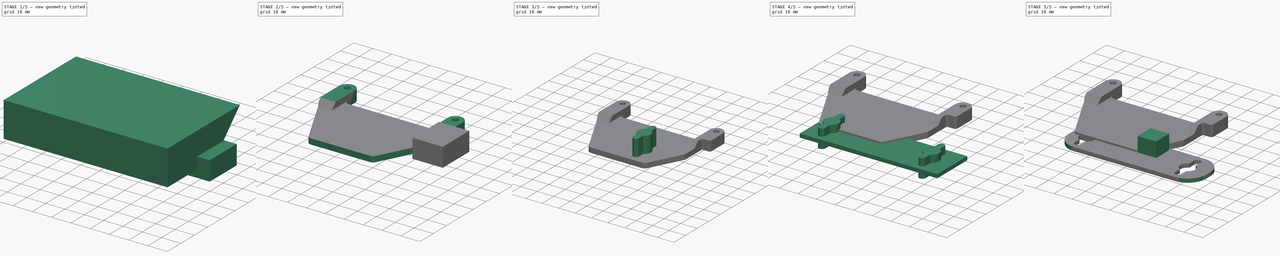
[diagram: build sequence overview — one tinted view per stage of 5, left to right]
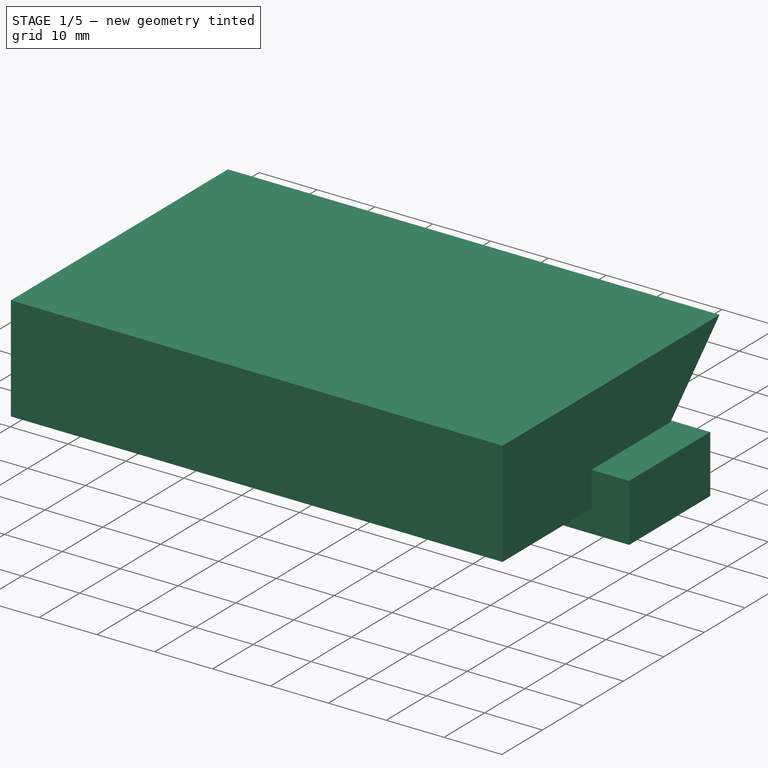
[diagram: stage 1 of 5 — iso view after this stage's code; geometry added in this stage tinted green]
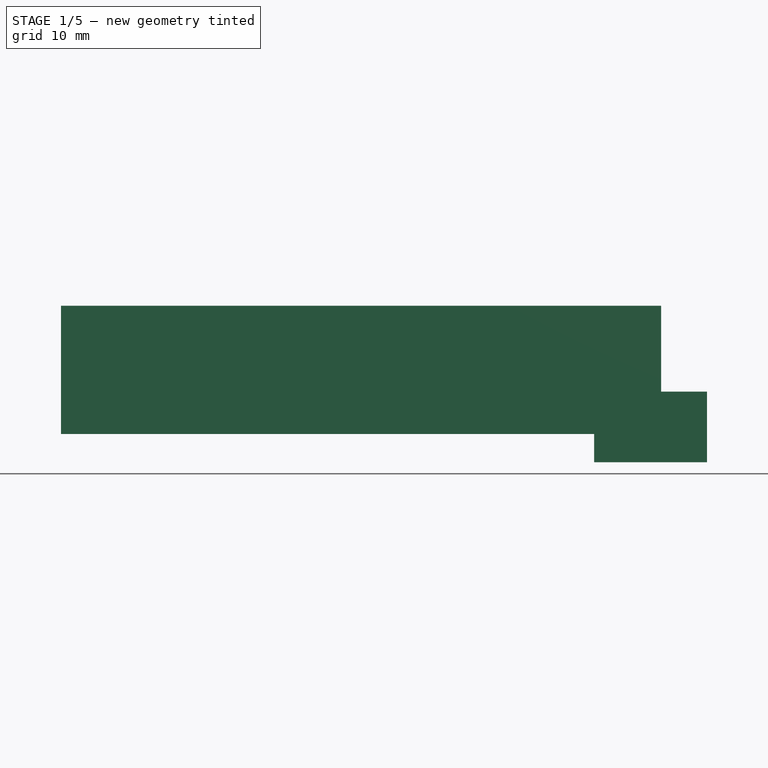
[diagram: stage 1 of 5 — front view after this stage's code; geometry added in this stage tinted green]
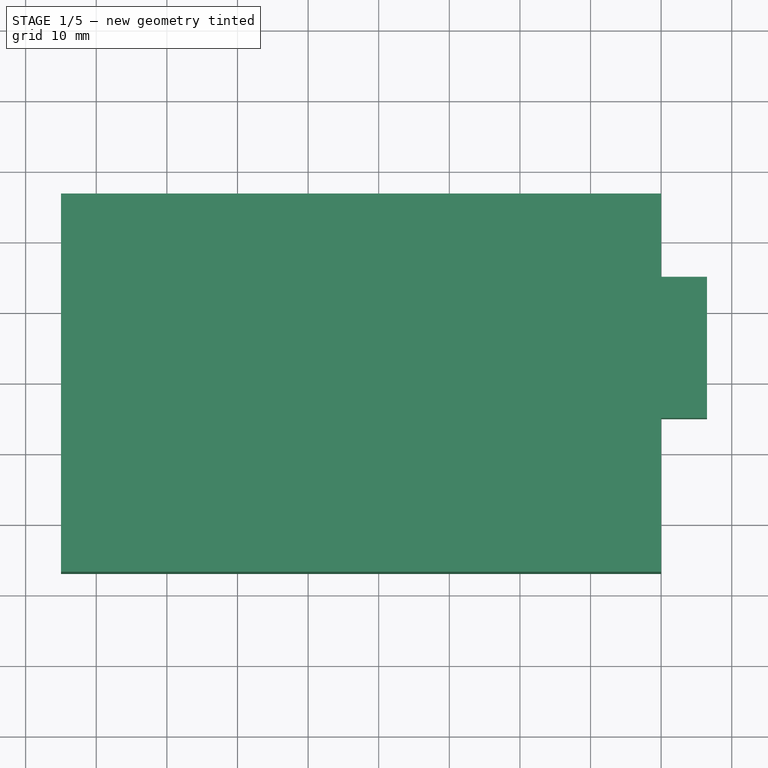
[diagram: stage 1 of 5 — top view after this stage's code; geometry added in this stage tinted green]
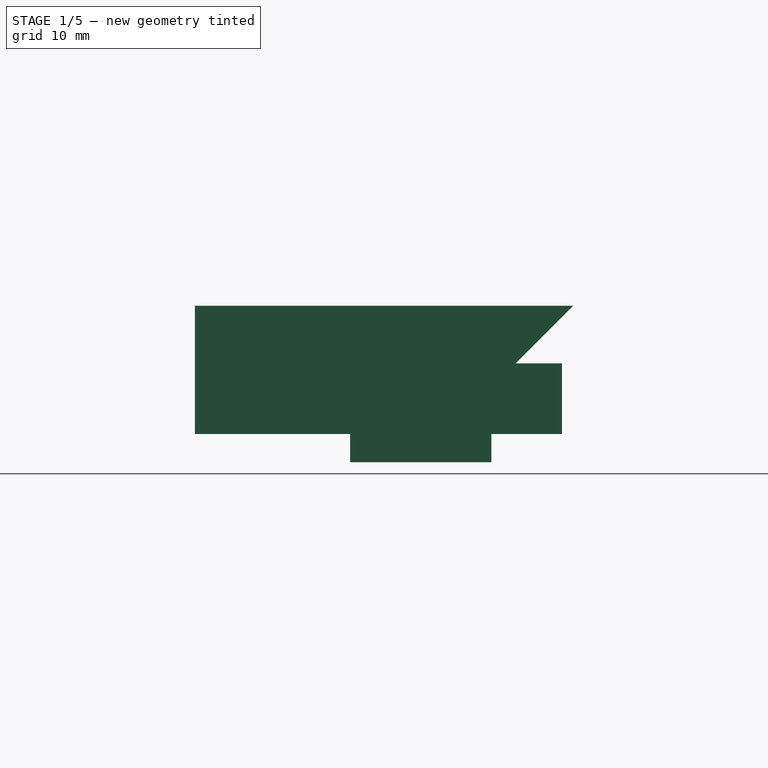
[diagram: stage 1 of 5 — right view after this stage's code; geometry added in this stage tinted green]
FCSTD DOCUMENT  (FreeCAD 0.16R)
Label: sopoeteesc
License: All rights reserved
LicenseURL: http://en.wikipedia.org/wiki/All_rights_reserved
objects: Sketcher::SketchObject×4, Part::Box×4, Part::Cut×4, PartDesign::Pad×3, Part::Fillet×3, Part::FeaturePython×2, Part::MultiFuse×1
note: 24 computed .brp shape members not serialized (recipe doc carries the construction recipe); baked Part::Feature solids carry a one-line shape summary decoded from their .brp

FEATURE [Sketcher::SketchObject] Sketch004
  Placement = pos=(20,0,0) rot=(0.57735,0.57735,0.57735;2.0944rad)
  sketch-geometry (4):
    g0: LineSegment StartX=-6.9884 StartY=21.1487 StartZ=0 EndX=46.5839 EndY=21.1487 EndZ=0
    g1: LineSegment StartX=46.5839 StartY=21.1487 StartZ=0 EndX=28.4352 EndY=3 EndZ=0
    g2: LineSegment StartX=28.4352 StartY=3 StartZ=0 EndX=-6.9884 EndY=3 EndZ=0
    g3: LineSegment StartX=-6.9884 StartY=3 StartZ=0 EndX=-6.9884 EndY=21.1487 EndZ=0
  constraints (9):
    c: Coincident(g0,g1)
    c: Coincident(g1,g2)
    c: Coincident(g2,g3)
    c: Coincident(g3,g0)
    c: Horizontal(g0)
    c: Horizontal(g2)
    c: Vertical(g3)
    c: Angle(g0,g1) = 0.785398
    c: DistanceY(g-1,g2) = 3
FEATURE [PartDesign::Pad] Pad002
  Length = 85
  Length2 = 100
  Placement = pos=(20,0,0) rot=(0.57735,0.57735,0.57735;2.0944rad)
  Reversed = true
  Sketch = -> Sketch004
  Type = 0
FEATURE [Part::Box] Box002  label="Cube002"
  Height = 10
  Length = 49
  Placement = pos=(-41.5,0,3) rot=(0,0,1;0rad)
  Width = 45
FEATURE [Part::Box] Box003  label="Cube003"
  Height = 10
  Length = 16
  Placement = pos=(10.5,15,-1) rot=(0,0,1;0rad)
  Width = 20
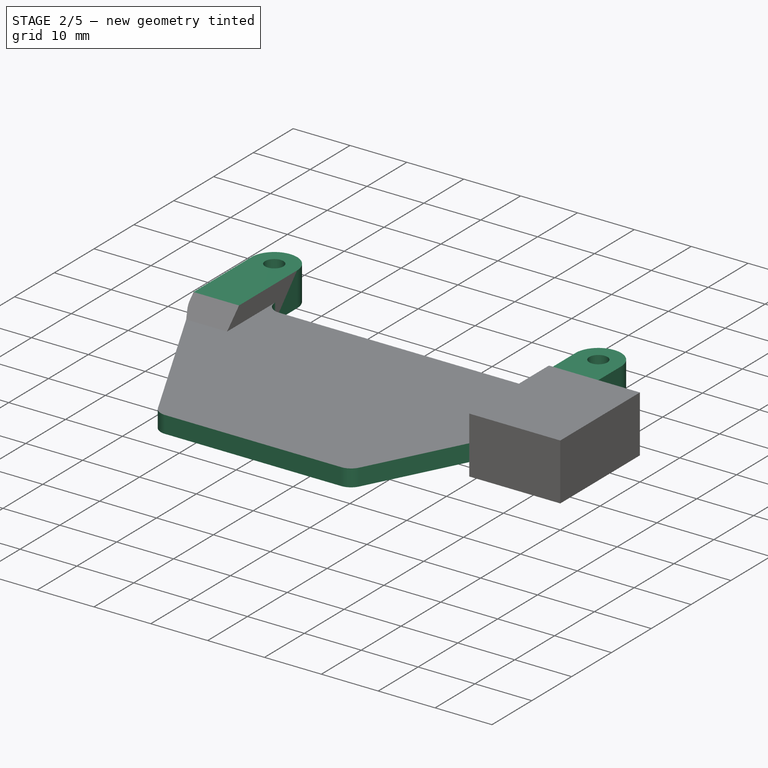
[diagram: stage 2 of 5 — iso view after this stage's code; geometry added in this stage tinted green]
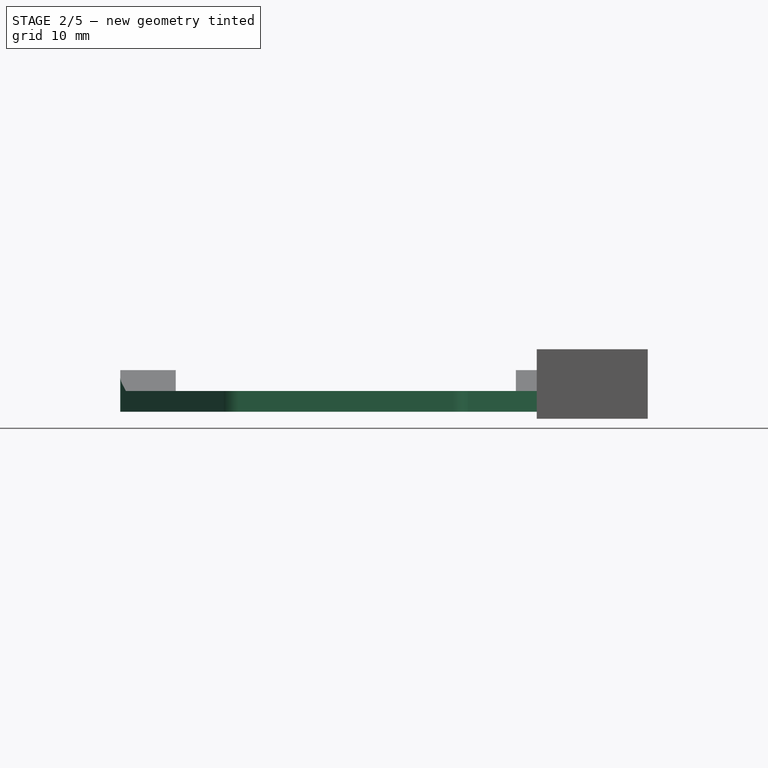
[diagram: stage 2 of 5 — front view after this stage's code; geometry added in this stage tinted green]
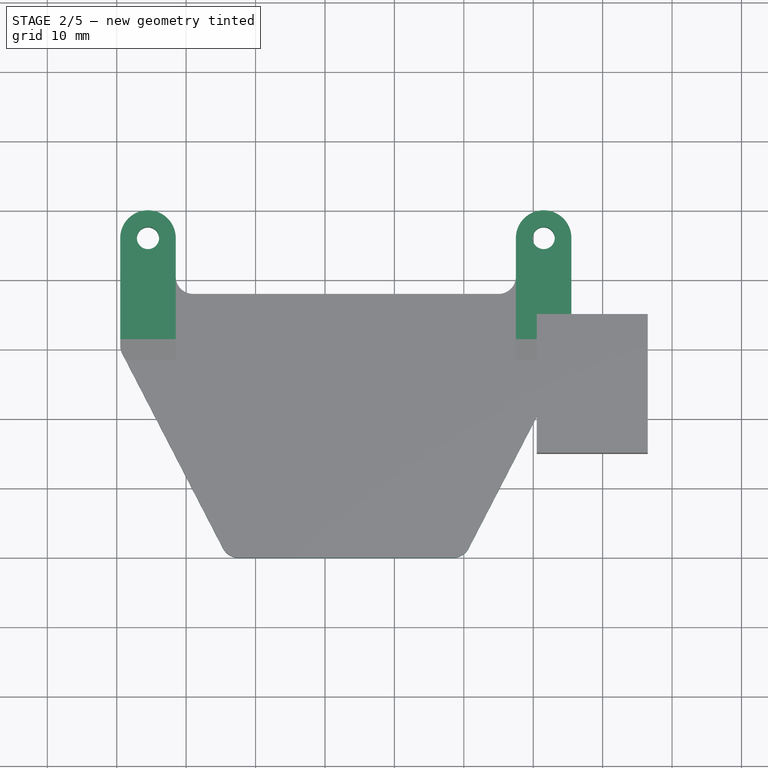
[diagram: stage 2 of 5 — top view after this stage's code; geometry added in this stage tinted green]
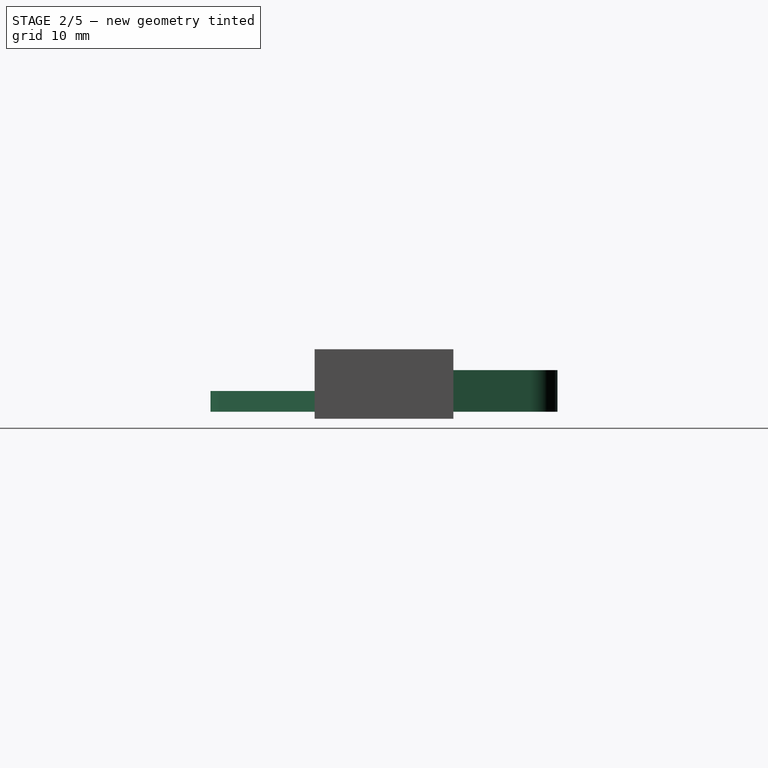
[diagram: stage 2 of 5 — right view after this stage's code; geometry added in this stage tinted green]
FEATURE [Sketcher::SketchObject] Sketch
  sketch-geometry (13):
    g0: LineSegment StartX=-49.5 StartY=46 StartZ=0 EndX=-49.5 EndY=30 EndZ=0
    g1: LineSegment StartX=-49.5 StartY=30 StartZ=0 EndX=-34 EndY=0 EndZ=0
    g2: LineSegment StartX=-34 StartY=0 StartZ=0 EndX=0 EndY=0 EndZ=0
    g3: LineSegment StartX=0 StartY=0 StartZ=0 EndX=15.5 EndY=30 EndZ=0
    g4: LineSegment StartX=15.5 StartY=30 StartZ=0 EndX=15.5 EndY=46 EndZ=0
    g5: LineSegment StartX=-41.5 StartY=46 StartZ=0 EndX=-41.5 EndY=38 EndZ=0
    g6: LineSegment StartX=-41.5 StartY=38 StartZ=0 EndX=7.5 EndY=38 EndZ=0
    g7: LineSegment StartX=7.5 StartY=38 StartZ=0 EndX=7.5 EndY=46 EndZ=0
    g8: ArcOfCircle CenterX=-45.5 CenterY=46 CenterZ=0 NormalX=0 NormalY=0 NormalZ=1 Radius=4 StartAngle=3.46477e-06 EndAngle=3.14159
    g9: ArcOfCircle CenterX=11.5 CenterY=46 CenterZ=0 NormalX=0 NormalY=0 NormalZ=1 Radius=4 StartAngle=4.03979e-06 EndAngle=3.14159
    g10: LineSegment [constr] StartX=-45.5 StartY=46 StartZ=0 EndX=11.5 EndY=46 EndZ=0
    g11: Circle CenterX=-45.5 CenterY=46 CenterZ=0 NormalX=0 NormalY=0 NormalZ=1 Radius=1.6
    g12: Circle CenterX=11.5 CenterY=46 CenterZ=0 NormalX=0 NormalY=0 NormalZ=1 Radius=1.6
  constraints (37):
    c: Vertical(g0)
    c: Coincident(g0,g1)
    c: Coincident(g1,g2)
    c: Horizontal(g2)
    c: Coincident(g2,g3)
    c: Coincident(g3,g4)
    c: Vertical(g4)
    c: Vertical(g5)
    c: Coincident(g5,g6)
    c: Horizontal(g6)
    c: Coincident(g6,g7)
    c: Vertical(g7)
    c: Coincident(g8,g5)
    c: Coincident(g9,g7)
    c: Coincident(g9,g4)
    c: DistanceX(g8,g9) = 57
    c: Coincident(g0,g8)
    c: DistanceY(g1,g8) = 46
    c: Equal(g0,g4)
    c: Equal(g3,g1)
    c: Equal(g5,g7)
    c: Equal(g8,g9)
    c: Tangent(g9,g7)
    c: Coincident(g10,g9)
    c: Horizontal(g10)
    c: Coincident(g10,g8)
    c: Tangent(g8,g0)
    c: Tangent(g9,g4)
    c: DistanceY(g1,g5) = 38
    c: Distance(g0) = 16
    c: Radius(g8) = 4
    c: Distance(g2) = 34
    c: Coincident(g12,g9)
    c: Equal(g11,g12)
    c: Radius(g11) = 1.6
    c: Coincident(g8,g11)
    c: Coincident(g2,g-1)
FEATURE [PartDesign::Pad] Pad
  Length = 6
  Length2 = 100
  Sketch = -> Sketch
  Type = 0
FEATURE [Part::Fillet] Fillet
  Base = -> Pad
  Edges = 6 edges r=2.5: [Edge5,Edge8,Edge11,Edge14,Edge23,Edge26]
FEATURE [Part::Cut] Cut001
  Base = -> Fillet
  Tool = -> Pad002
FEATURE [Part::Cut] Cut002
  Base = -> Cut001
  Tool = -> Box002
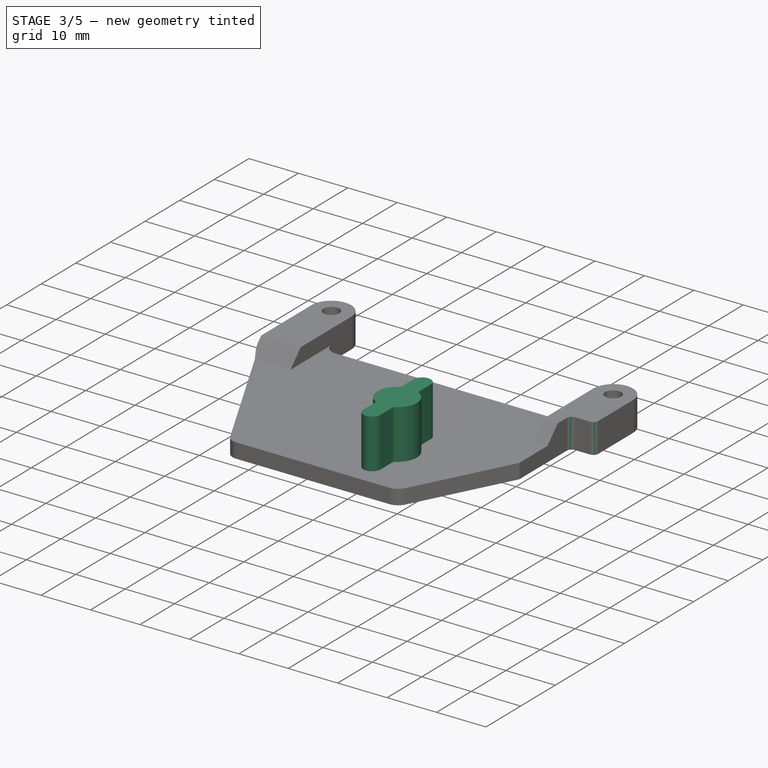
[diagram: stage 3 of 5 — iso view after this stage's code; geometry added in this stage tinted green]
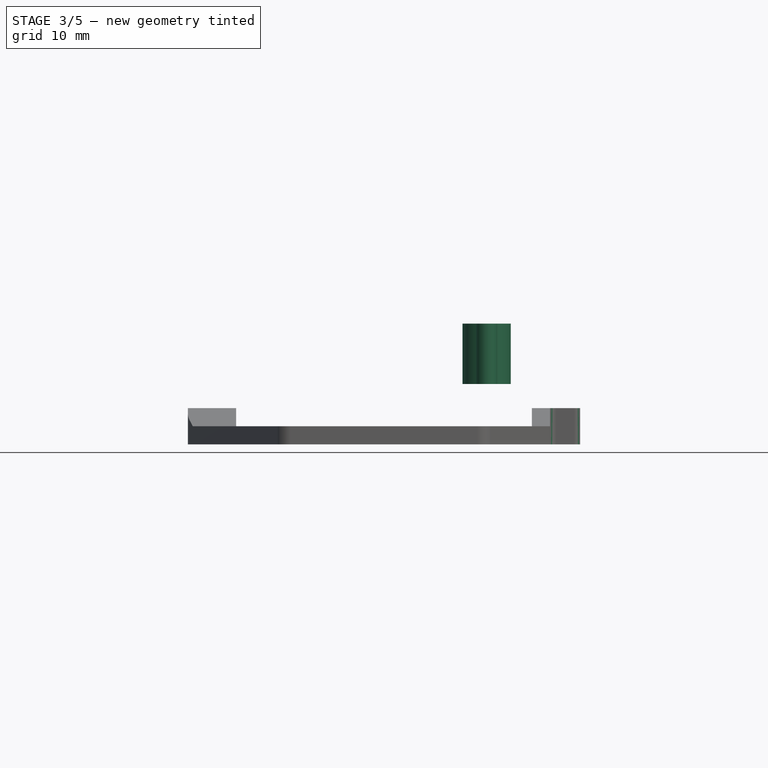
[diagram: stage 3 of 5 — front view after this stage's code; geometry added in this stage tinted green]
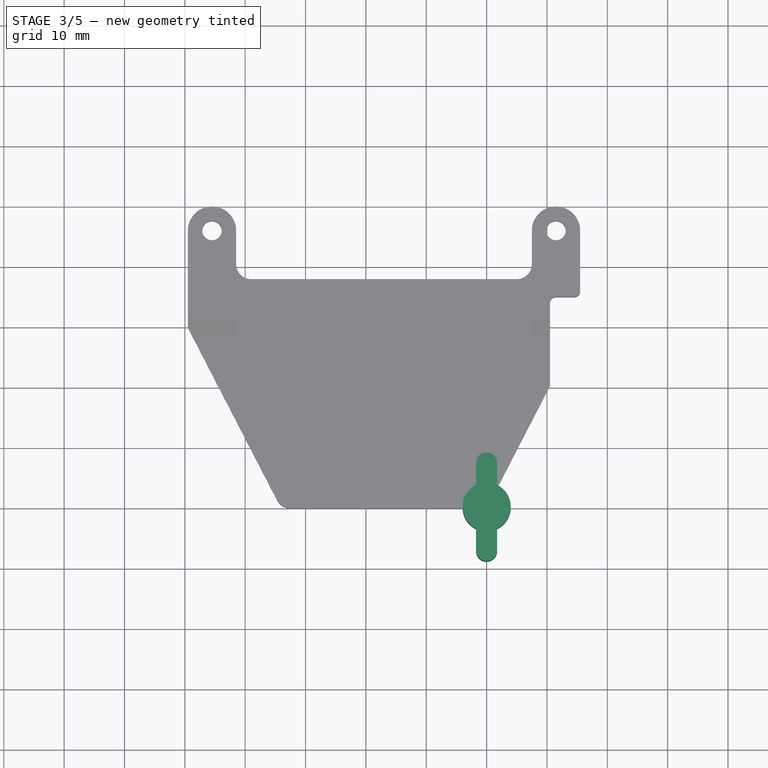
[diagram: stage 3 of 5 — top view after this stage's code; geometry added in this stage tinted green]
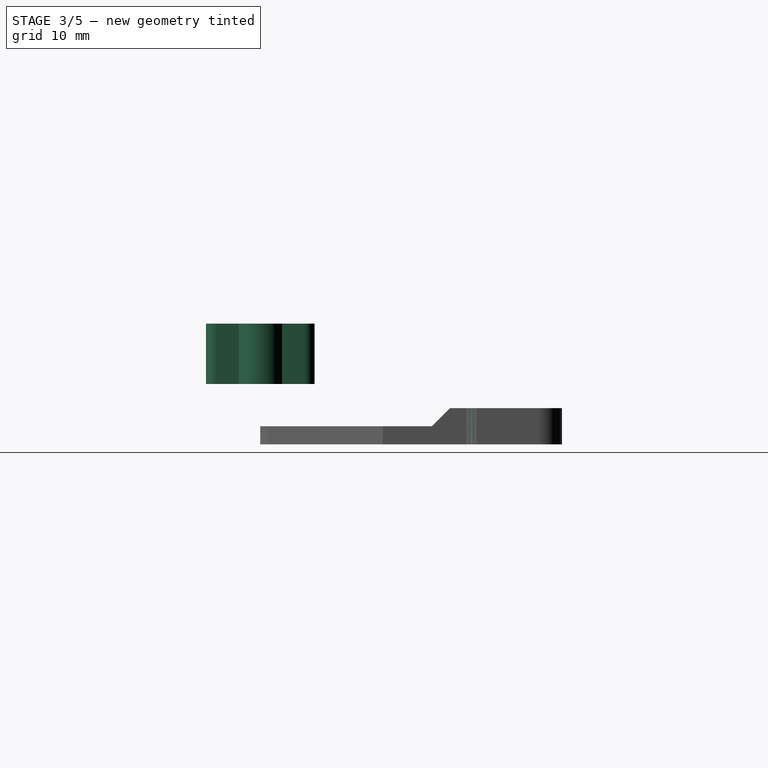
[diagram: stage 3 of 5 — right view after this stage's code; geometry added in this stage tinted green]
FEATURE [Sketcher::SketchObject] Sketch003
  Placement = pos=(0,0,10) rot=(0,0,1;0rad)
  sketch-geometry (11):
    g0: ArcOfCircle CenterX=0 CenterY=0 CenterZ=0 NormalX=0 NormalY=0 NormalZ=1 Radius=4 StartAngle=2.02361 EndAngle=4.25957
    g1: ArcOfCircle CenterX=0 CenterY=0 CenterZ=0 NormalX=0 NormalY=0 NormalZ=1 Radius=4 StartAngle=5.16521 EndAngle=7.40117
    g2: ArcOfCircle CenterX=0 CenterY=7.25001 CenterZ=0 NormalX=0 NormalY=0 NormalZ=1 Radius=1.75 StartAngle=6.28318 EndAngle=9.42478
    g3: ArcOfCircle CenterX=0 CenterY=-7.25 CenterZ=0 NormalX=0 NormalY=0 NormalZ=1 Radius=1.75 StartAngle=3.14159 EndAngle=6.28319
    g4: LineSegment StartX=-1.75 StartY=7.25001 StartZ=0 EndX=-1.75 EndY=3.59687 EndZ=0
    g5: LineSegment [constr] StartX=-1.75 StartY=3.59687 StartZ=0 EndX=-1.75 EndY=-3.59687 EndZ=0
    g6: LineSegment StartX=-1.75 StartY=-3.59687 StartZ=0 EndX=-1.75 EndY=-7.25 EndZ=0
    g7: LineSegment [constr] StartX=-1.75 StartY=-7.25 StartZ=0 EndX=1.75 EndY=-7.25 EndZ=0
    g8: LineSegment StartX=1.75 StartY=-7.25 StartZ=0 EndX=1.75 EndY=-3.59687 EndZ=0
    g9: LineSegment [constr] StartX=1.75 StartY=-3.59687 StartZ=0 EndX=1.75 EndY=3.59687 EndZ=0
    g10: LineSegment StartX=1.75 StartY=3.59687 StartZ=0 EndX=1.75 EndY=7.25 EndZ=0
  constraints (31):
    c: Coincident(g0,g-1)
    c: Coincident(g1,g-1)
    c: PointOnObject(g2,g-2)
    c: PointOnObject(g3,g-2)
    c: Tangent(g2,g4) = -1.5708
    c: Coincident(g4,g5)
    c: Coincident(g5,g0)
    c: Coincident(g5,g6)
    c: Coincident(g6,g3)
    c: Coincident(g6,g7)
    c: Coincident(g7,g3)
    c: Coincident(g7,g8)
    c: Coincident(g8,g1)
    c: Coincident(g8,g9)
    c: Coincident(g9,g1)
    c: Coincident(g9,g10)
    c: Coincident(g10,g2)
    c: Coincident(g0,g4)
    c: Vertical(g4)
    c: Vertical(g10)
    c: Vertical(g9)
    c: Vertical(g5)
    c: Vertical(g6)
    c: Vertical(g8)
    c: Horizontal(g7)
    c: PointOnObject(g3,g7)
    c: Equal(g10,g8)
    c: Equal(g1,g0)
    c: Radius(g2) = 1.75
    c: Radius(g1) = 4
    c: DistanceY(g3,g2) = 14.5
FEATURE [PartDesign::Pad] Pad001
  Length = 10
  Length2 = 100
  Placement = pos=(0,0,10) rot=(0,0,1;0rad)
  Sketch = -> Sketch003
  Type = 0
FEATURE [Part::Cut] Cut003
  Base = -> Cut002
  Tool = -> Box003
FEATURE [Part::Fillet] Fillet002
  Base = -> Cut003
  Edges = 2 edges r=1: [Edge59,Edge62]
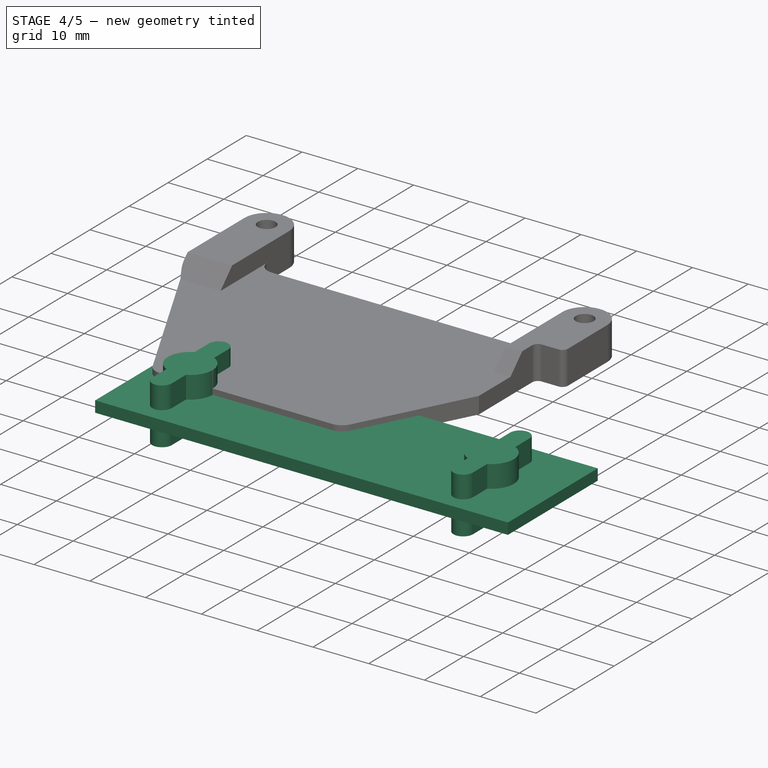
[diagram: stage 4 of 5 — iso view after this stage's code; geometry added in this stage tinted green]
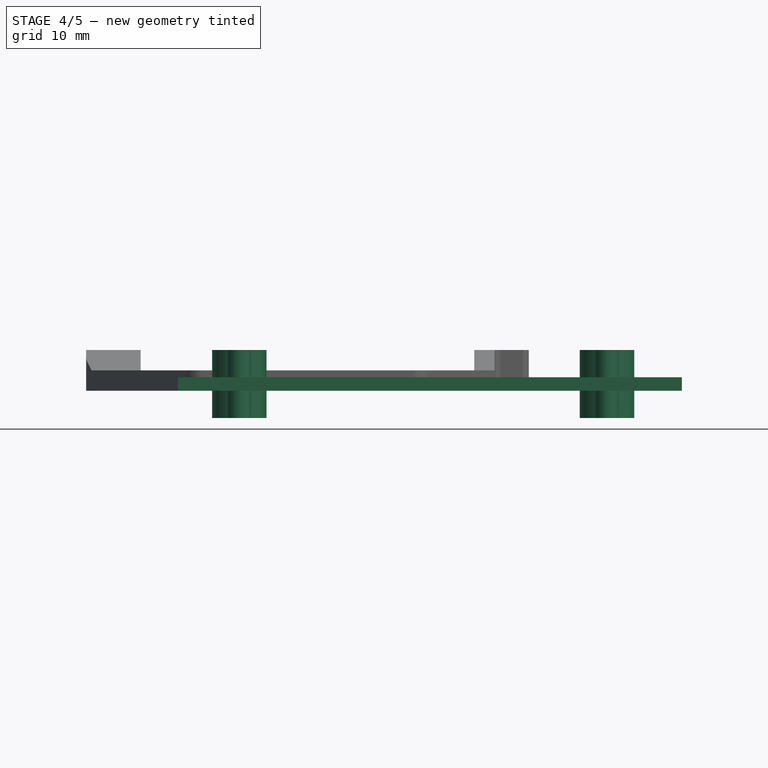
[diagram: stage 4 of 5 — front view after this stage's code; geometry added in this stage tinted green]
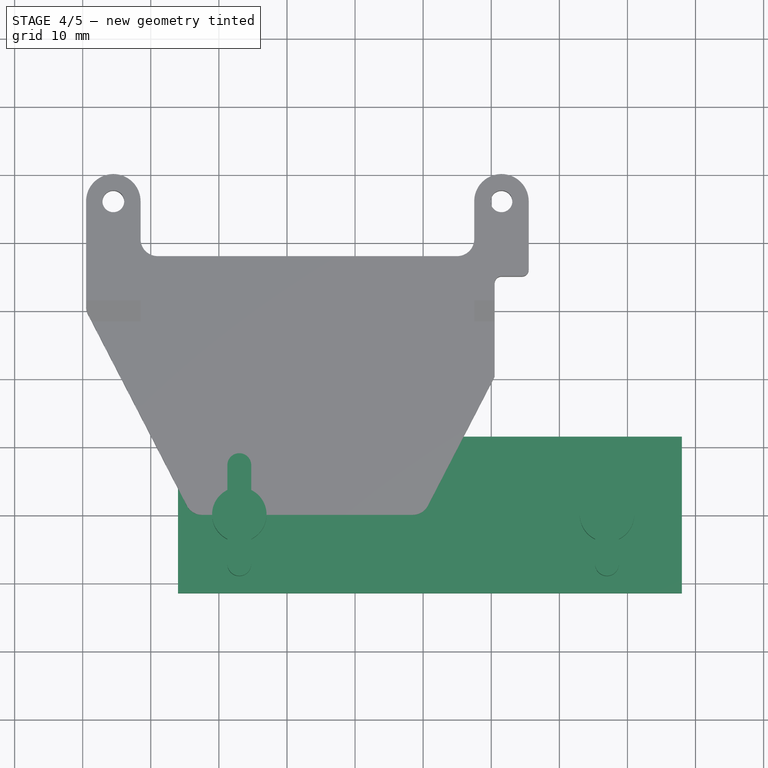
[diagram: stage 4 of 5 — top view after this stage's code; geometry added in this stage tinted green]
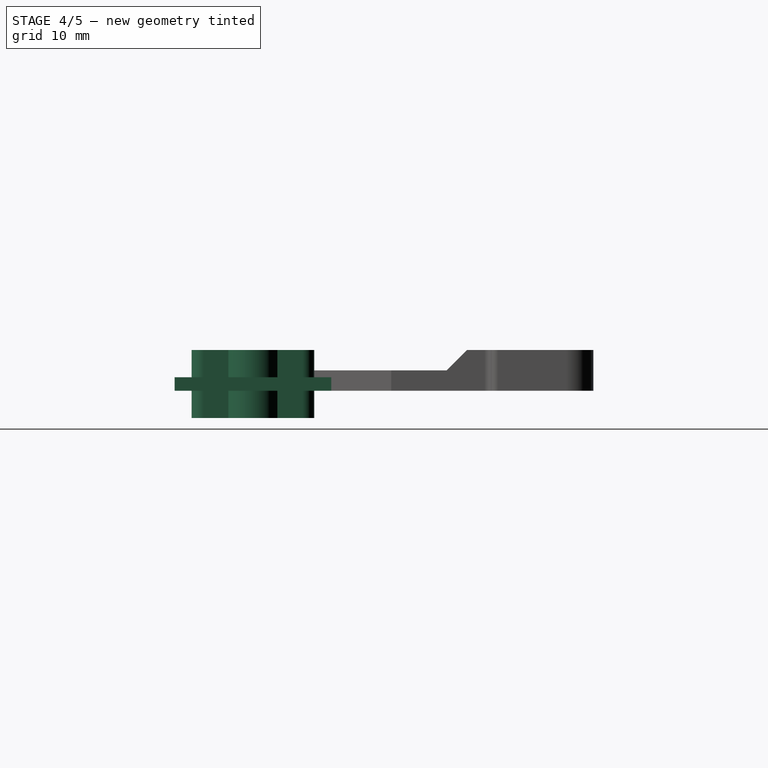
[diagram: stage 4 of 5 — right view after this stage's code; geometry added in this stage tinted green]
FEATURE [Sketcher::SketchObject] Sketch002
  Placement = pos=(0,0,10) rot=(0,0,1;0rad)
  Support = -> Box [Face6]
  sketch-geometry (11):
    g0: ArcOfCircle CenterX=0 CenterY=0 CenterZ=0 NormalX=0 NormalY=0 NormalZ=1 Radius=4 StartAngle=2.02361 EndAngle=4.25957
    g1: ArcOfCircle CenterX=0 CenterY=0 CenterZ=0 NormalX=0 NormalY=0 NormalZ=1 Radius=4 StartAngle=5.16521 EndAngle=7.40117
    g2: ArcOfCircle CenterX=0 CenterY=7.25001 CenterZ=0 NormalX=0 NormalY=0 NormalZ=1 Radius=1.75 StartAngle=6.28318 EndAngle=9.42478
    g3: ArcOfCircle CenterX=0 CenterY=-7.25 CenterZ=0 NormalX=0 NormalY=0 NormalZ=1 Radius=1.75 StartAngle=3.14159 EndAngle=6.28319
    g4: LineSegment StartX=-1.75 StartY=7.25001 StartZ=0 EndX=-1.75 EndY=3.59687 EndZ=0
    g5: LineSegment [constr] StartX=-1.75 StartY=3.59687 StartZ=0 EndX=-1.75 EndY=-3.59687 EndZ=0
    g6: LineSegment StartX=-1.75 StartY=-3.59687 StartZ=0 EndX=-1.75 EndY=-7.25 EndZ=0
    g7: LineSegment [constr] StartX=-1.75 StartY=-7.25 StartZ=0 EndX=1.75 EndY=-7.25 EndZ=0
    g8: LineSegment StartX=1.75 StartY=-7.25 StartZ=0 EndX=1.75 EndY=-3.59687 EndZ=0
    g9: LineSegment [constr] StartX=1.75 StartY=-3.59687 StartZ=0 EndX=1.75 EndY=3.59687 EndZ=0
    g10: LineSegment StartX=1.75 StartY=3.59687 StartZ=0 EndX=1.75 EndY=7.25 EndZ=0
  constraints (31):
    c: Coincident(g0,g-1)
    c: Coincident(g1,g-1)
    c: PointOnObject(g2,g-2)
    c: PointOnObject(g3,g-2)
    c: Tangent(g2,g4) = -1.5708
    c: Coincident(g4,g5)
    c: Coincident(g5,g0)
    c: Coincident(g5,g6)
    c: Coincident(g6,g3)
    c: Coincident(g6,g7)
    c: Coincident(g7,g3)
    c: Coincident(g7,g8)
    c: Coincident(g8,g1)
    c: Coincident(g8,g9)
    c: Coincident(g9,g1)
    c: Coincident(g9,g10)
    c: Coincident(g10,g2)
    c: Coincident(g0,g4)
    c: Vertical(g4)
    c: Vertical(g10)
    c: Vertical(g9)
    c: Vertical(g5)
    c: Vertical(g6)
    c: Vertical(g8)
    c: Horizontal(g7)
    c: PointOnObject(g3,g7)
    c: Equal(g10,g8)
    c: Equal(g1,g0)
    c: Radius(g2) = 1.75
    c: Radius(g1) = 4
    c: DistanceY(g3,g2) = 14.5
FEATURE [Part::Box] Box001  label="Cube001"
  Height = 2
  Length = 74
  Placement = pos=(-36,-11.5,0) rot=(0,0,1;0rad)
  Width = 23
FEATURE [Part::FeaturePython] Clone  label="Clone of Pad001"  # Draft clone (typed FeaturePython)
  Objects = -> [Pad001]
  Placement = pos=(-27,0,10) rot=(0,0,1;0rad)
  Scale = (1,1,1)
FEATURE [Part::FeaturePython] Clone001  label="Clone of Pad002"  # Draft clone (typed FeaturePython)
  Objects = -> [Pad001]
  Placement = pos=(27,0,10) rot=(0,0,1;0rad)
  Scale = (1,1,1)
FEATURE [Part::MultiFuse] Fusion
  Placement = pos=(0,0,-14) rot=(0,0,1;0rad)
  Shapes = -> [Clone,Clone001]
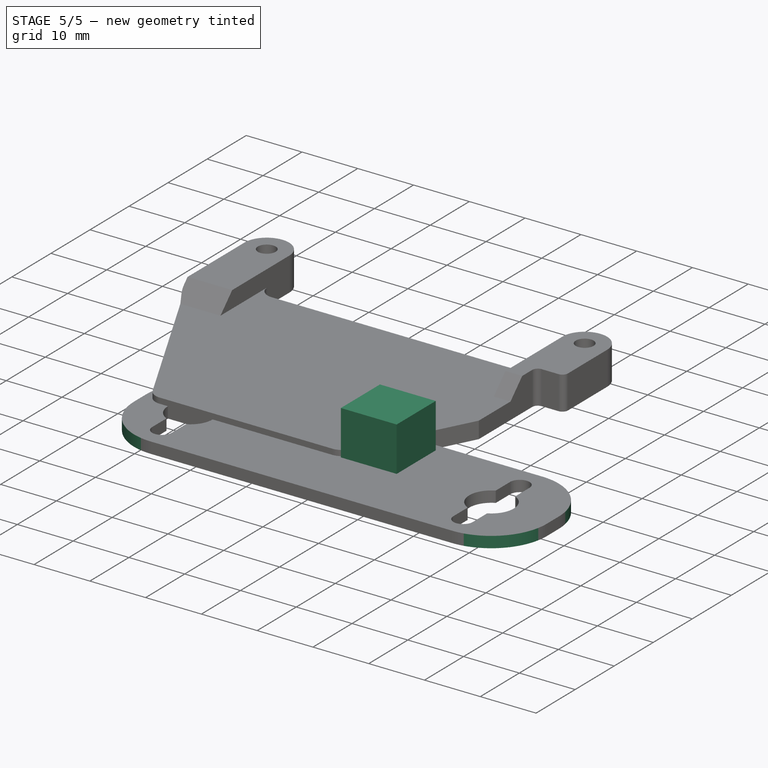
[diagram: stage 5 of 5 — iso view after this stage's code; geometry added in this stage tinted green]
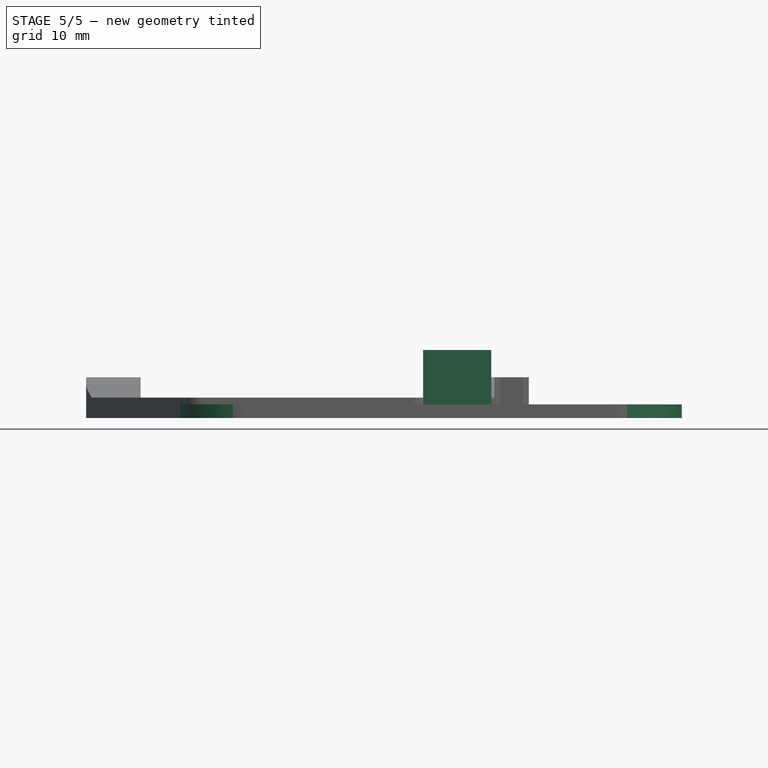
[diagram: stage 5 of 5 — front view after this stage's code; geometry added in this stage tinted green]
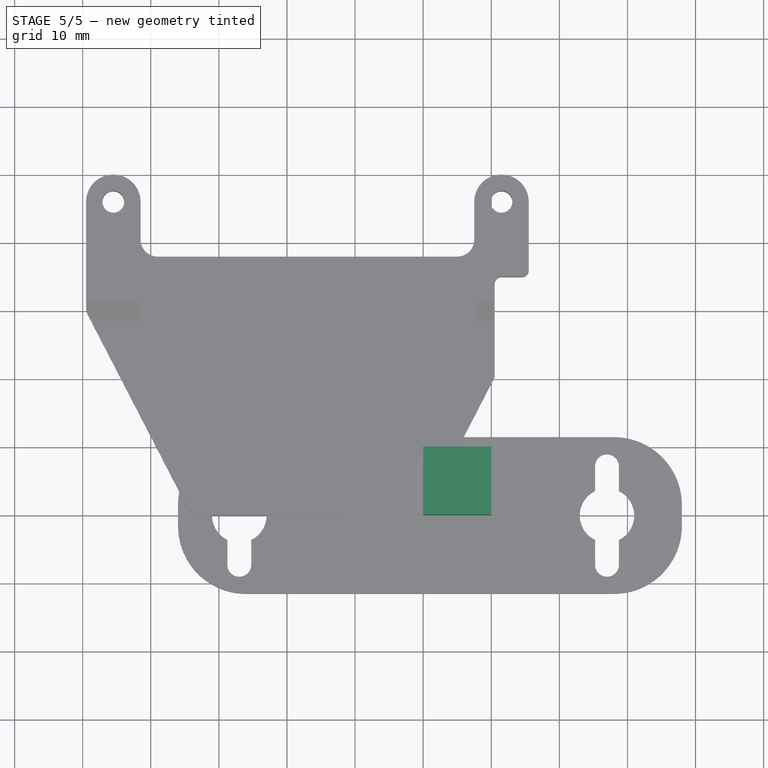
[diagram: stage 5 of 5 — top view after this stage's code; geometry added in this stage tinted green]
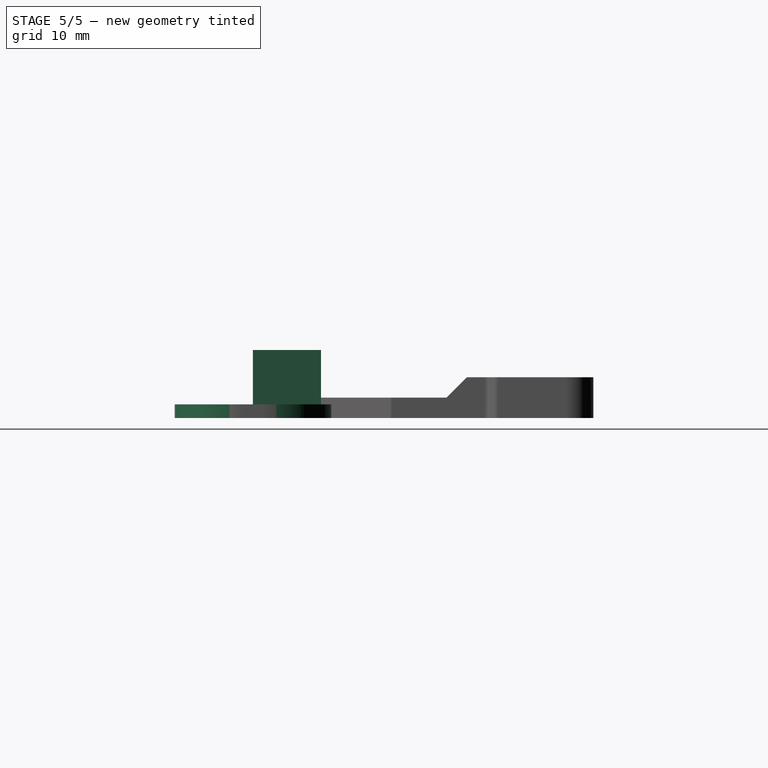
[diagram: stage 5 of 5 — right view after this stage's code; geometry added in this stage tinted green]
FEATURE [Part::Box] Box  label="Cube"
  Height = 10
  Length = 10
  Width = 10
FEATURE [Part::Cut] Cut
  Base = -> Box001
  Tool = -> Fusion
FEATURE [Part::Fillet] Fillet001
  Base = -> Cut
  Edges = 4 edges r=10: [Edge1,Edge3,Edge6,Edge27]
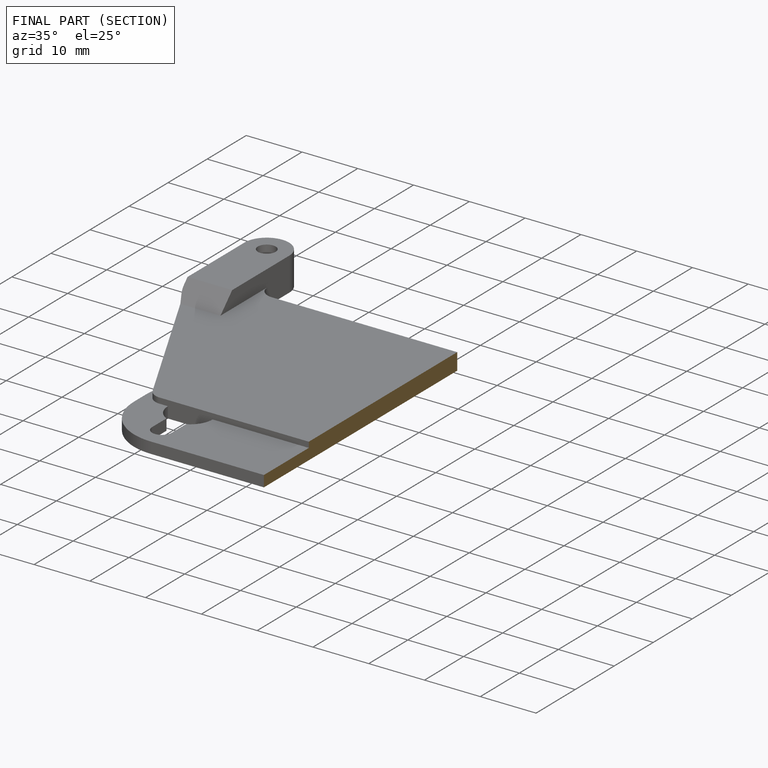
[diagram: finished part — half-section view (interior)]
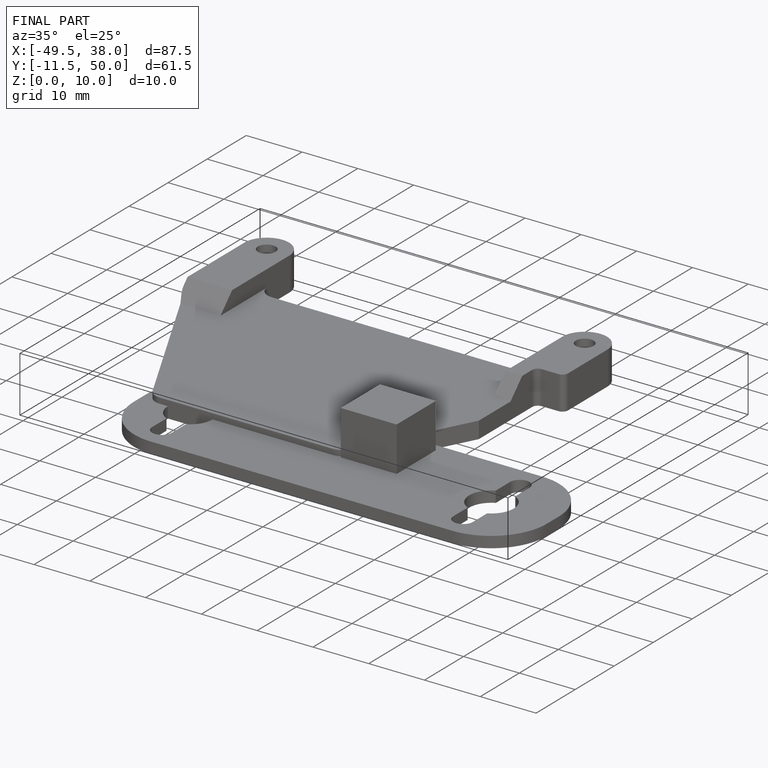
[diagram: finished part — iso view with bounding-box wireframe]
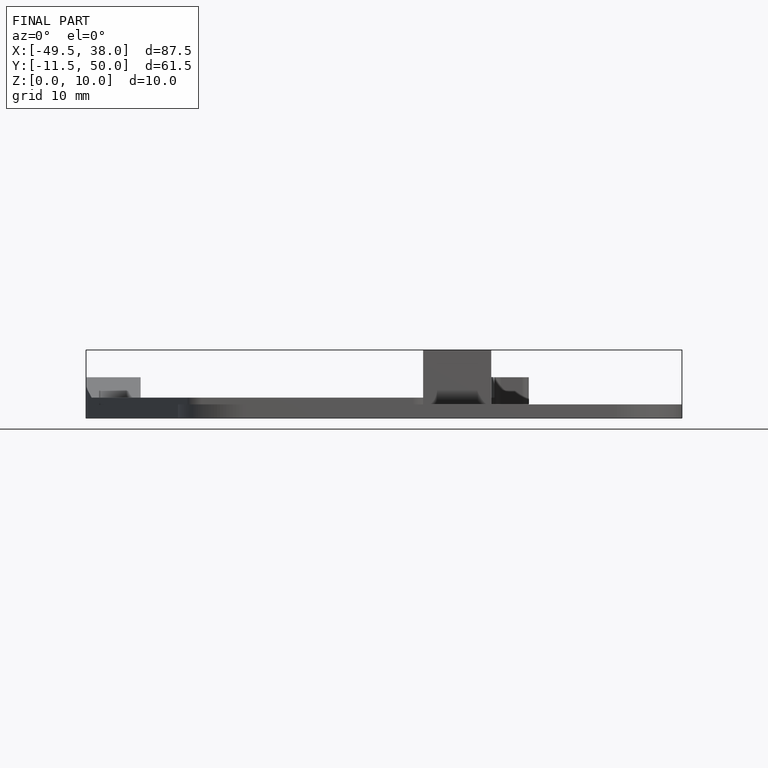
[diagram: finished part — front view with bounding-box wireframe]
